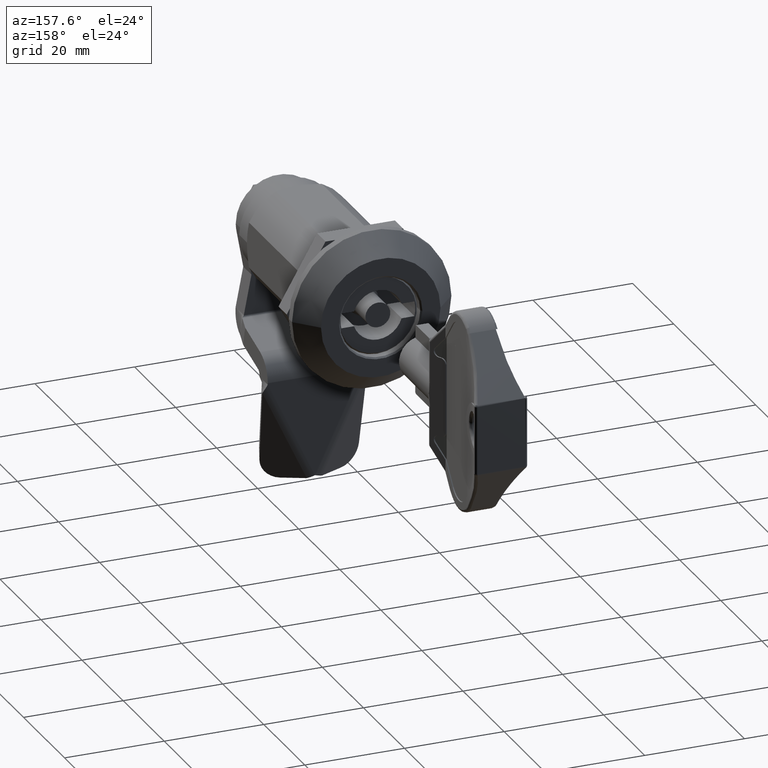
[diagram: clean part render]
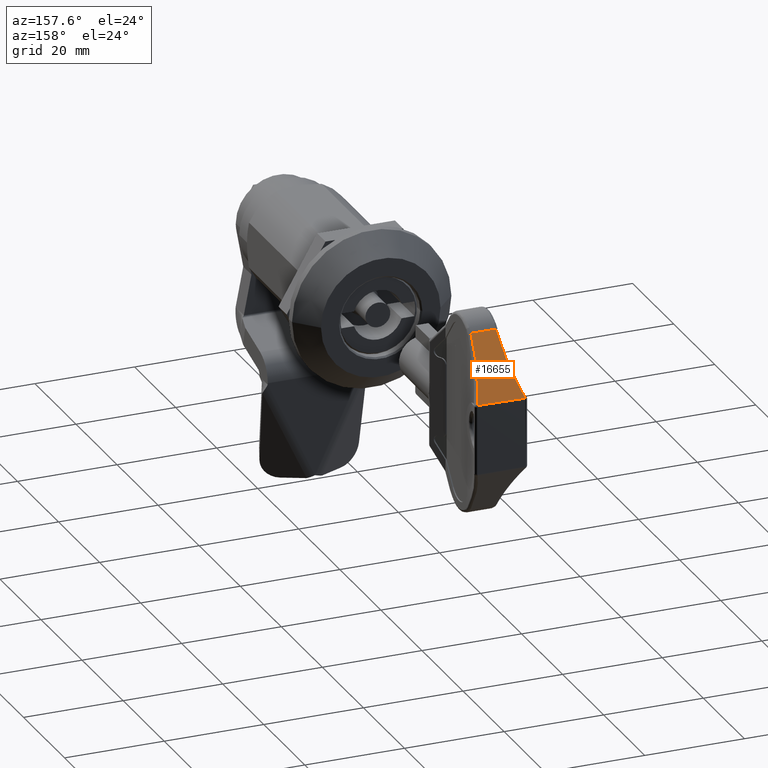
[diagram: same view with one face highlighted and labeled with its STEP entity id]
A machine part, auxiliary view. The second image highlights one B-rep face of the part: STEP entity #16655.
In plain terms, the highlighted planar face has unit normal (0, -0.7732, -0.6341).
Its self-contained STEP definition (entity closure, byte-faithful):
#332 = B_SPLINE_CURVE_WITH_KNOTS ( 'NONE', 3,
 ( #16350, #1957, #24573, #12177, #6148, #11909, #20134, #12305, #20532, #1696, #9899, #18105 ),
 .UNSPECIFIED., .F., .F.,
 ( 4, 1, 1, 1, 1, 2, 2, 4 ),
 ( 0.0000000000000000000, 0.2500000000000020539, 0.3750000000000037748, 0.4375000000000047184, 0.4687500000000053291, 0.4843750000000066058, 0.5000000000000078826, 1.000000000000000000 ),
 .UNSPECIFIED. ) ;
#380 = FACE_OUTER_BOUND ( 'NONE', #5186, .T. ) ;
#1610 = CARTESIAN_POINT ( 'NONE',  ( 12.83836049250430200, 108.7672345829543161, 15.45111099202183702 ) ) ;
#1696 = CARTESIAN_POINT ( 'NONE',  ( 6.416823080402584090, 111.5807623905298414, 12.02025898418606076 ) ) ;
#1957 = CARTESIAN_POINT ( 'NONE',  ( 7.451876323556649417, 106.3718036480320848, 18.37213029404891174 ) ) ;
#2656 = DIRECTION ( 'NONE',  ( 1.799873168592088012E-15, 0.6341104703502870032, -0.7732424661075838479 ) ) ;
#2681 = EDGE_CURVE ( 'NONE', #14618, #6170, #5035, .T. ) ;
#3106 = VECTOR ( 'NONE', #26324, 1000.000000000000000 ) ;
#3135 = CARTESIAN_POINT ( 'NONE',  ( 18.09383272429366230, 114.3542311236335536, 8.638255527166068148 ) ) ;
#3196 = LINE ( 'NONE', #11514, #3106 ) ;
#3501 = CARTESIAN_POINT ( 'NONE',  ( 14.45315562236185336, 113.7161116272439045, 9.416386651204911473 ) ) ;
#5035 =( BOUNDED_CURVE ( )  B_SPLINE_CURVE ( 3, ( #26372, #3501, #20048, #10083, #1610, #26105, #22343, #5659 ),
 .UNSPECIFIED., .F., .F. ) 
 B_SPLINE_CURVE_WITH_KNOTS ( ( 4, 1, 1, 1, 1, 4 ),
 ( 0.0000000000000000000, 0.2261528164032999833, 0.4445973965998000210, 0.6500061967393000462, 0.8369586936045000369, 1.000000000000000000 ),
 .UNSPECIFIED. ) 
 CURVE ( )  GEOMETRIC_REPRESENTATION_ITEM ( )  RATIONAL_B_SPLINE_CURVE ( ( 1.274401947322503226, 1.274401947322503226, 1.274401947322503226, 1.274401947322503226, 1.274401947322503226, 1.274401947322503448, 1.274401947322503226, 1.274401947322503670 ) ) 
 REPRESENTATION_ITEM ( '' )  );
#5186 = EDGE_LOOP ( 'NONE', ( #9937, #15416, #22981, #6635 ) ) ;
#5659 = CARTESIAN_POINT ( 'NONE',  ( 12.50740274904122629, 105.6070646872283305, 19.30466282209973272 ) ) ;
#6148 = CARTESIAN_POINT ( 'NONE',  ( 6.967448691555635065, 109.4748177961197655, 14.58827491801540432 ) ) ;
#6170 = VERTEX_POINT ( 'NONE', #6898 ) ;
#6573 = DIRECTION ( 'NONE',  ( 1.476015771643205197E-15, -0.7732424661075838479, -0.6341104703502870032 ) ) ;
#6635 = ORIENTED_EDGE ( 'NONE', *, *, #12508, .F. ) ;
#6898 = CARTESIAN_POINT ( 'NONE',  ( 12.50740274904122806, 105.6070646872283305, 19.30466282209973272 ) ) ;
#7156 = VECTOR ( 'NONE', #26141, 1000.000000000000000 ) ;
#7596 = AXIS2_PLACEMENT_3D ( 'NONE', #21218, #6573, #2656 ) ;
#9899 = CARTESIAN_POINT ( 'NONE',  ( 5.876206793178969434, 112.9761970654237473, 10.31864798774410907 ) ) ;
#9937 = ORIENTED_EDGE ( 'NONE', *, *, #2681, .F. ) ;
#10083 = CARTESIAN_POINT ( 'NONE',  ( 13.25724498000795570, 110.5595223857304745, 13.26557218546580152 ) ) ;
#11514 = CARTESIAN_POINT ( 'NONE',  ( 18.09383272429355216, 105.6070646872278331, 19.30466282209841111 ) ) ;
#11909 = CARTESIAN_POINT ( 'NONE',  ( 6.888131043777261375, 109.8000170634779522, 14.19172274733531225 ) ) ;
#12177 = CARTESIAN_POINT ( 'NONE',  ( 7.112219541026939318, 108.8224798073360517, 15.38374425461882034 ) ) ;
#12305 = CARTESIAN_POINT ( 'NONE',  ( 6.828669681275417958, 110.0319097458867503, 13.90894982683922798 ) ) ;
#12508 = EDGE_CURVE ( 'NONE', #6170, #13469, #3196, .T. ) ;
#13469 = VERTEX_POINT ( 'NONE', #25064 ) ;
#13613 = LINE ( 'NONE', #3135, #7156 ) ;
#14618 = VERTEX_POINT ( 'NONE', #23345 ) ;
#15416 = ORIENTED_EDGE ( 'NONE', *, *, #16134, .F. ) ;
#16134 = EDGE_CURVE ( 'NONE', #19063, #14618, #13613, .T. ) ;
#16350 = CARTESIAN_POINT ( 'NONE',  ( 7.480004685533789832, 105.6070646872278900, 19.30466282209883033 ) ) ;
#16655 = ADVANCED_FACE ( 'NONE', ( #380 ), #25393, .F. ) ;
#16732 = CARTESIAN_POINT ( 'NONE',  ( 5.173510398128084553, 114.3915868977317984, 8.510484198787159116 ) ) ;
#18105 = CARTESIAN_POINT ( 'NONE',  ( 5.182343052299569486, 114.3108738708287149, 8.691125919077112627 ) ) ;
#19063 = VERTEX_POINT ( 'NONE', #16732 ) ;
#20048 = CARTESIAN_POINT ( 'NONE',  ( 13.88602849457858213, 112.4463566701580106, 10.96474218273258749 ) ) ;
#20134 = CARTESIAN_POINT ( 'NONE',  ( 6.852652289791664408, 109.9391803794099474, 14.02202520939133024 ) ) ;
#20532 = CARTESIAN_POINT ( 'NONE',  ( 6.816297190019396268, 110.0790638291349239, 13.85144953103473497 ) ) ;
#21054 = EDGE_CURVE ( 'NONE', #13469, #19063, #332, .T. ) ;
#21218 = CARTESIAN_POINT ( 'NONE',  ( 18.09383272429355216, 105.6070646872297232, 19.30466282209996365 ) ) ;
#22343 = CARTESIAN_POINT ( 'NONE',  ( 12.52482790263475643, 106.0902635214480227, 18.71544394673905742 ) ) ;
#22981 = ORIENTED_EDGE ( 'NONE', *, *, #21054, .F. ) ;
#23345 = CARTESIAN_POINT ( 'NONE',  ( 14.77899754998191639, 114.3542311248378098, 8.638255525695070602 ) ) ;
#24573 = CARTESIAN_POINT ( 'NONE',  ( 7.346303455627707812, 107.5100460134985667, 16.98414290879852828 ) ) ;
#25064 = CARTESIAN_POINT ( 'NONE',  ( 7.480004685533789832, 105.6070646872278900, 19.30466282209883033 ) ) ;
#25393 = PLANE ( 'NONE',  #7596 ) ;
#26105 = CARTESIAN_POINT ( 'NONE',  ( 12.59826338167860449, 107.1271058165307011, 17.45110511193809089 ) ) ;
#26141 = DIRECTION ( 'NONE',  ( 1.000000000000000000, -3.462277103873345949E-22, 2.327695422764130721E-15 ) ) ;
#26324 = DIRECTION ( 'NONE',  ( -1.000000000000000000, 3.462277103873345949E-22, -2.327695422764130721E-15 ) ) ;
#26372 = CARTESIAN_POINT ( 'NONE',  ( 14.77899754998191817, 114.3542311248377956, 8.638255525695070602 ) ) ;